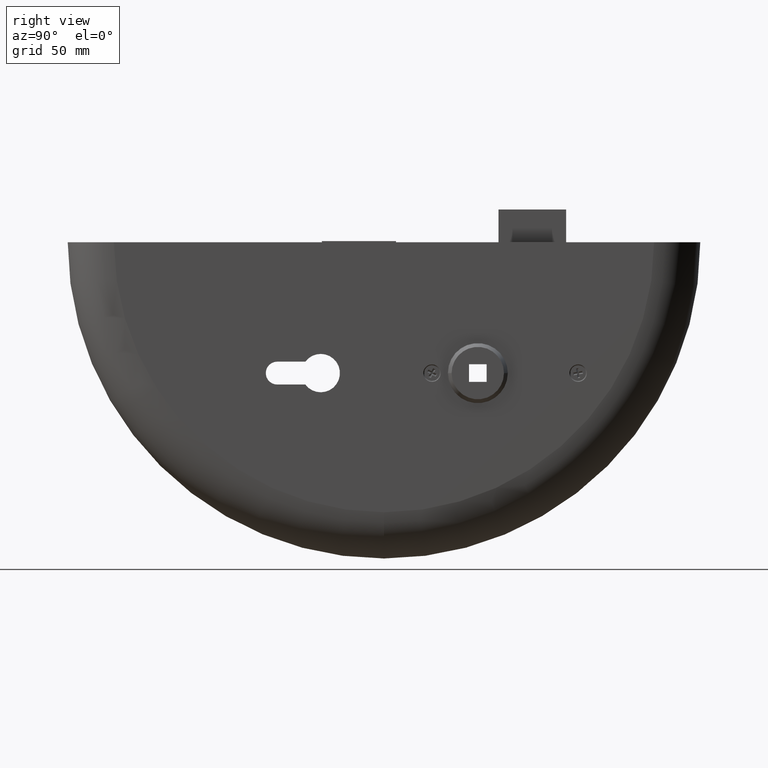
[diagram: clean part render]
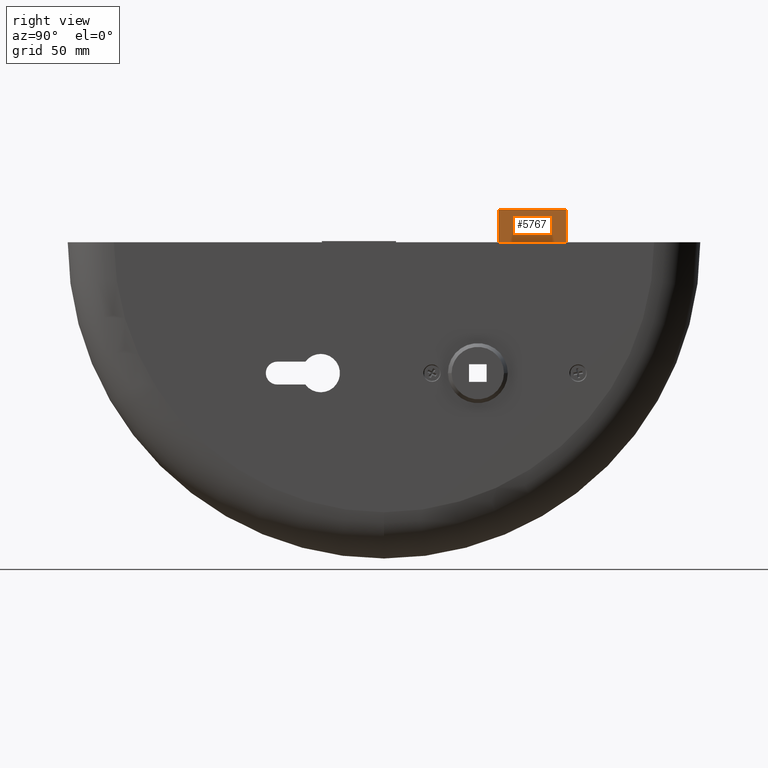
[diagram: same view with one face highlighted and labeled with its STEP entity id]
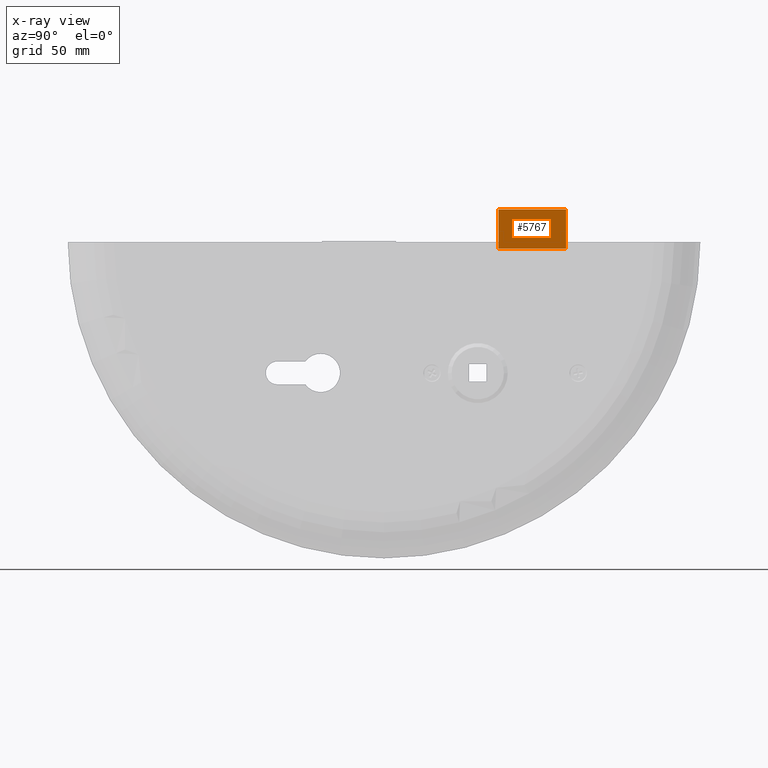
[diagram: x-ray of the same camera — body ghosted, the highlighted face saturated]
A machine part, right view. The second image highlights one B-rep face of the part: STEP entity #5767.
The next image is the same camera in x-ray: the body ghosted, the highlighted face saturated — about 0% of this face is hidden behind the body in this view.
In plain terms, the highlighted planar face has unit normal (1, 0, 0).
Its self-contained STEP definition (entity closure, byte-faithful):
#567 = LINE ( 'NONE', #9449, #955 ) ;
#779 = LINE ( 'NONE', #1906, #11711 ) ;
#955 = VECTOR ( 'NONE', #10961, 1000.000000000000000 ) ;
#1350 = LINE ( 'NONE', #2070, #15365 ) ;
#1906 = CARTESIAN_POINT ( 'NONE',  ( 7.000000000000006217, 52.49999999999999289, -3.000000000000000000 ) ) ;
#2070 = CARTESIAN_POINT ( 'NONE',  ( 7.000000000000006217, 0.000000000000000000, -3.000000000000000000 ) ) ;
#2381 = VERTEX_POINT ( 'NONE', #13921 ) ;
#2583 = DIRECTION ( 'NONE',  ( 0.000000000000000000, 0.000000000000000000, -1.000000000000000000 ) ) ;
#3270 = VERTEX_POINT ( 'NONE', #15874 ) ;
#3489 = EDGE_CURVE ( 'NONE', #2381, #8494, #1350, .T. ) ;
#3751 = ORIENTED_EDGE ( 'NONE', *, *, #3489, .T. ) ;
#4268 = DIRECTION ( 'NONE',  ( 0.000000000000000000, 0.000000000000000000, 1.000000000000000000 ) ) ;
#4581 = VERTEX_POINT ( 'NONE', #14689 ) ;
#4775 = LINE ( 'NONE', #10669, #10033 ) ;
#4901 = CARTESIAN_POINT ( 'NONE',  ( 7.000000000000006217, 83.49999999999998579, -3.000000000000000000 ) ) ;
#5341 = ORIENTED_EDGE ( 'NONE', *, *, #8789, .F. ) ;
#5767 = ADVANCED_FACE ( 'NONE', ( #12401 ), #12806, .T. ) ;
#7263 = DIRECTION ( 'NONE',  ( 0.000000000000000000, 1.000000000000000000, -0.000000000000000000 ) ) ;
#7672 = CARTESIAN_POINT ( 'NONE',  ( 7.000000000000006217, 0.000000000000000000, -3.000000000000000000 ) ) ;
#8494 = VERTEX_POINT ( 'NONE', #4901 ) ;
#8789 = EDGE_CURVE ( 'NONE', #2381, #4581, #779, .T. ) ;
#9449 = CARTESIAN_POINT ( 'NONE',  ( 7.000000000000006217, 0.000000000000000000, 15.00000000000000000 ) ) ;
#9890 = ORIENTED_EDGE ( 'NONE', *, *, #9996, .F. ) ;
#9984 = ORIENTED_EDGE ( 'NONE', *, *, #12649, .T. ) ;
#9996 = EDGE_CURVE ( 'NONE', #4581, #3270, #567, .T. ) ;
#10033 = VECTOR ( 'NONE', #4268, 1000.000000000000000 ) ;
#10669 = CARTESIAN_POINT ( 'NONE',  ( 7.000000000000006217, 83.49999999999998579, -3.000000000000000000 ) ) ;
#10961 = DIRECTION ( 'NONE',  ( 0.000000000000000000, 1.000000000000000000, -0.000000000000000000 ) ) ;
#10981 = AXIS2_PLACEMENT_3D ( 'NONE', #7672, #16769, #2583 ) ;
#11617 = EDGE_LOOP ( 'NONE', ( #9984, #9890, #5341, #3751 ) ) ;
#11711 = VECTOR ( 'NONE', #14800, 1000.000000000000000 ) ;
#12401 = FACE_OUTER_BOUND ( 'NONE', #11617, .T. ) ;
#12649 = EDGE_CURVE ( 'NONE', #8494, #3270, #4775, .T. ) ;
#12806 = PLANE ( 'NONE',  #10981 ) ;
#13921 = CARTESIAN_POINT ( 'NONE',  ( 7.000000000000006217, 52.49999999999999289, -3.000000000000000000 ) ) ;
#14689 = CARTESIAN_POINT ( 'NONE',  ( 7.000000000000006217, 52.49999999999999289, 15.00000000000000000 ) ) ;
#14800 = DIRECTION ( 'NONE',  ( 0.000000000000000000, 0.000000000000000000, 1.000000000000000000 ) ) ;
#15365 = VECTOR ( 'NONE', #7263, 1000.000000000000000 ) ;
#15874 = CARTESIAN_POINT ( 'NONE',  ( 7.000000000000006217, 83.49999999999998579, 15.00000000000000000 ) ) ;
#16769 = DIRECTION ( 'NONE',  ( 1.000000000000000000, -0.000000000000000000, 0.000000000000000000 ) ) ;